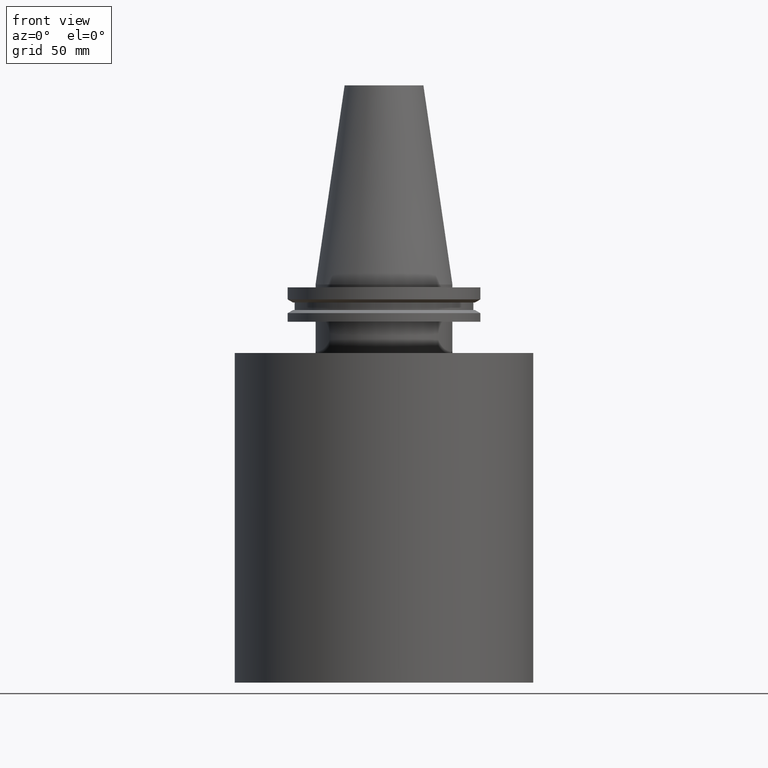
[diagram: clean part render]
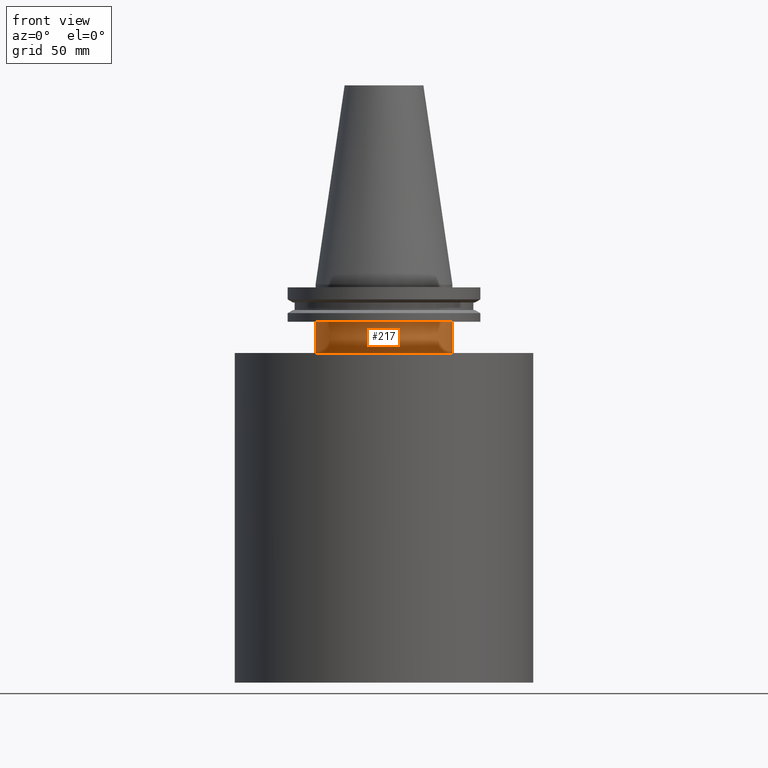
[diagram: same view with one face highlighted and labeled with its STEP entity id]
A machine part, front view. The second image highlights one B-rep face of the part: STEP entity #217.
In plain terms, the highlighted cylindrical surface (bore or boss wall) has radius 34.925 mm, axis along (-0, -0, 1).
Its self-contained STEP definition (entity closure, byte-faithful):
#26 = DIRECTION ( 'NONE',  ( -0.000000000000000000, -0.000000000000000000, 1.000000000000000000 ) ) ;
#28 = AXIS2_PLACEMENT_3D ( 'NONE', #256, #107, #259 ) ;
#40 = ORIENTED_EDGE ( 'NONE', *, *, #381, .F. ) ;
#57 = CARTESIAN_POINT ( 'NONE',  ( 34.92499999999999716, 0.000000000000000000, -35.00000000000000000 ) ) ;
#92 = DIRECTION ( 'NONE',  ( 1.000000000000000000, 0.000000000000000000, 0.000000000000000000 ) ) ;
#93 = VERTEX_POINT ( 'NONE', #214 ) ;
#98 = EDGE_CURVE ( 'NONE', #329, #329, #258, .T. ) ;
#107 = DIRECTION ( 'NONE',  ( -0.000000000000000000, -0.000000000000000000, 1.000000000000000000 ) ) ;
#142 = DIRECTION ( 'NONE',  ( 1.000000000000000000, 0.000000000000000000, 0.000000000000000000 ) ) ;
#172 = FACE_OUTER_BOUND ( 'NONE', #303, .T. ) ;
#199 = FACE_OUTER_BOUND ( 'NONE', #336, .T. ) ;
#214 = CARTESIAN_POINT ( 'NONE',  ( 34.92499999999999716, 0.000000000000000000, -19.04999999999999716 ) ) ;
#217 = ADVANCED_FACE ( 'NONE', ( #199, #172 ), #319, .T. ) ;
#240 = DIRECTION ( 'NONE',  ( -0.000000000000000000, -0.000000000000000000, 1.000000000000000000 ) ) ;
#245 = AXIS2_PLACEMENT_3D ( 'NONE', #297, #26, #142 ) ;
#256 = CARTESIAN_POINT ( 'NONE',  ( 0.000000000000000000, 0.000000000000000000, -35.00000000000000000 ) ) ;
#258 = CIRCLE ( 'NONE', #28, 34.92499999999999716 ) ;
#259 = DIRECTION ( 'NONE',  ( 1.000000000000000000, 0.000000000000000000, 0.000000000000000000 ) ) ;
#269 = ORIENTED_EDGE ( 'NONE', *, *, #98, .T. ) ;
#273 = CARTESIAN_POINT ( 'NONE',  ( 0.000000000000000000, 0.000000000000000000, -19.04999999999999716 ) ) ;
#290 = AXIS2_PLACEMENT_3D ( 'NONE', #273, #240, #92 ) ;
#297 = CARTESIAN_POINT ( 'NONE',  ( 0.000000000000000000, 0.000000000000000000, 101.5999999999999943 ) ) ;
#303 = EDGE_LOOP ( 'NONE', ( #269 ) ) ;
#319 = CYLINDRICAL_SURFACE ( 'NONE', #245, 34.92499999999999716 ) ;
#327 = CIRCLE ( 'NONE', #290, 34.92499999999999716 ) ;
#329 = VERTEX_POINT ( 'NONE', #57 ) ;
#336 = EDGE_LOOP ( 'NONE', ( #40 ) ) ;
#381 = EDGE_CURVE ( 'NONE', #93, #93, #327, .T. ) ;